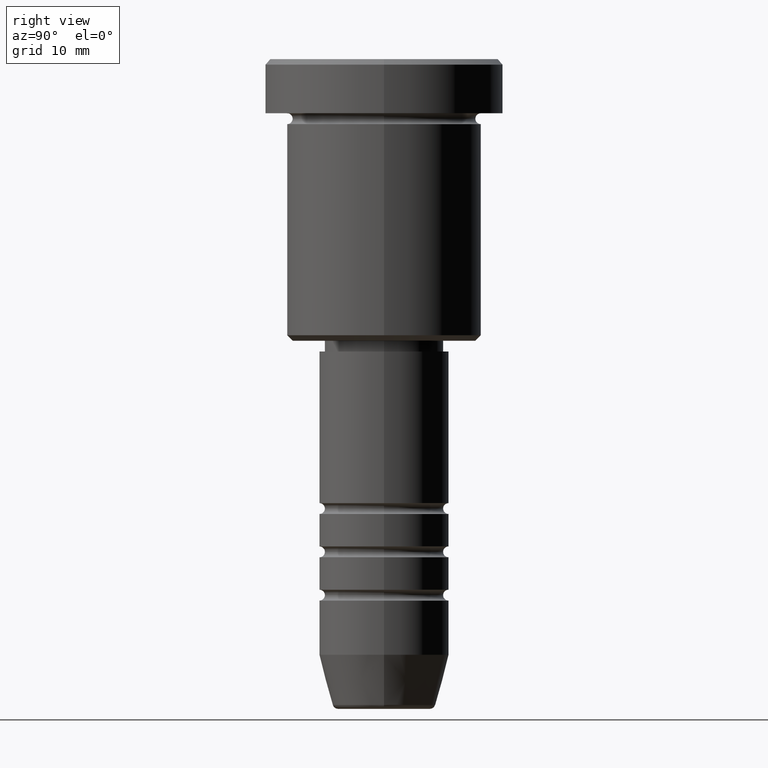
[diagram: clean part render]
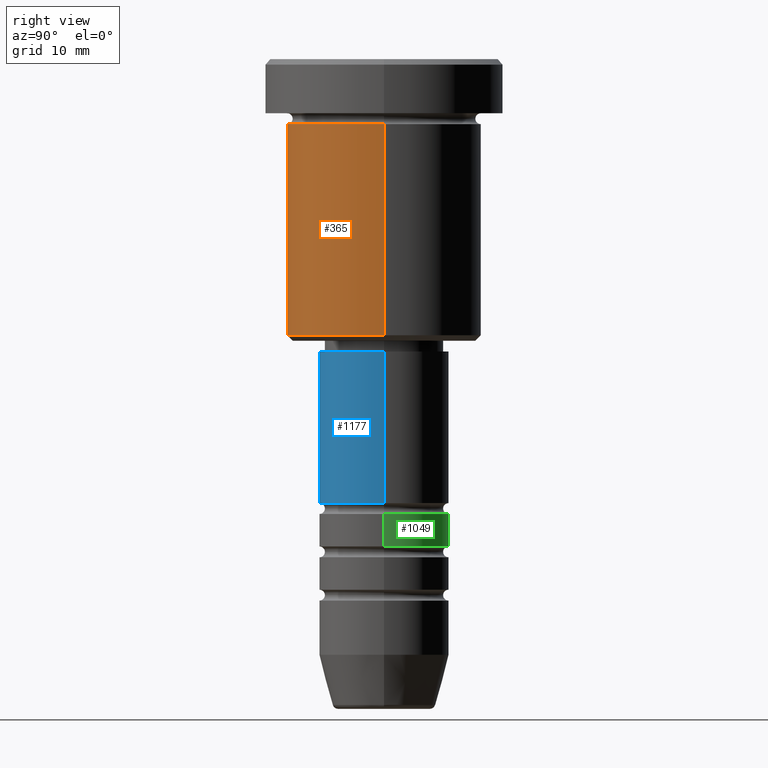
[diagram: same view with three faces highlighted in distinct colors, each labeled with its STEP entity id]
A machine part, right view with three faces highlighted in distinct colors.
Their STEP definitions:

[orange] entity #365 — the highlighted cylindrical surface (partial cylindrical patch) has radius 9 mm, axis along (-0, -0, 1).
#2 = DIRECTION ( 'NONE',  ( -0.000000000000000000, -0.000000000000000000, 1.000000000000000000 ) ) ;
#39 = ORIENTED_EDGE ( 'NONE', *, *, #538, .T. ) ;
#87 = CARTESIAN_POINT ( 'NONE',  ( 9.000000000000000000, 0.000000000000000000, -6.000000000000000000 ) ) ;
#116 = DIRECTION ( 'NONE',  ( -0.000000000000000000, -0.000000000000000000, 1.000000000000000000 ) ) ;
#234 = VERTEX_POINT ( 'NONE', #716 ) ;
#258 = EDGE_CURVE ( 'NONE', #711, #234, #911, .T. ) ;
#291 = CARTESIAN_POINT ( 'NONE',  ( 0.000000000000000000, 0.000000000000000000, -25.50000000000000711 ) ) ;
#365 = ADVANCED_FACE ( 'NONE', ( #1036 ), #937, .T. ) ;
#406 = EDGE_CURVE ( 'NONE', #585, #998, #577, .T. ) ;
#441 = CARTESIAN_POINT ( 'NONE',  ( -9.000000000000000000, 1.102182119232617714E-15, 0.000000000000000000 ) ) ;
#443 = CIRCLE ( 'NONE', #1137, 9.000000000000000000 ) ;
#455 = ORIENTED_EDGE ( 'NONE', *, *, #946, .F. ) ;
#465 = DIRECTION ( 'NONE',  ( -0.000000000000000000, -0.000000000000000000, 1.000000000000000000 ) ) ;
#466 = CIRCLE ( 'NONE', #615, 9.000000000000000000 ) ;
#473 = CARTESIAN_POINT ( 'NONE',  ( 0.000000000000000000, 0.000000000000000000, 0.000000000000000000 ) ) ;
#478 = CARTESIAN_POINT ( 'NONE',  ( -9.000000000000000000, 1.102182119232617714E-15, -25.50000000000000711 ) ) ;
#538 = EDGE_CURVE ( 'NONE', #711, #585, #466, .T. ) ;
#562 = DIRECTION ( 'NONE',  ( 1.000000000000000000, 0.000000000000000000, 0.000000000000000000 ) ) ;
#577 = LINE ( 'NONE', #1027, #710 ) ;
#585 = VERTEX_POINT ( 'NONE', #724 ) ;
#615 = AXIS2_PLACEMENT_3D ( 'NONE', #291, #465, #817 ) ;
#624 = ORIENTED_EDGE ( 'NONE', *, *, #406, .T. ) ;
#634 = AXIS2_PLACEMENT_3D ( 'NONE', #473, #116, #562 ) ;
#667 = DIRECTION ( 'NONE',  ( -0.000000000000000000, -0.000000000000000000, 1.000000000000000000 ) ) ;
#672 = EDGE_LOOP ( 'NONE', ( #775, #39, #624, #455 ) ) ;
#710 = VECTOR ( 'NONE', #667, 1000.000000000000000 ) ;
#711 = VERTEX_POINT ( 'NONE', #478 ) ;
#716 = CARTESIAN_POINT ( 'NONE',  ( -9.000000000000000000, 1.102182119232617714E-15, -6.000000000000000000 ) ) ;
#724 = CARTESIAN_POINT ( 'NONE',  ( 9.000000000000000000, 0.000000000000000000, -25.50000000000000711 ) ) ;
#775 = ORIENTED_EDGE ( 'NONE', *, *, #258, .F. ) ;
#817 = DIRECTION ( 'NONE',  ( -1.000000000000000000, 0.000000000000000000, 0.000000000000000000 ) ) ;
#911 = LINE ( 'NONE', #441, #1138 ) ;
#937 = CYLINDRICAL_SURFACE ( 'NONE', #634, 9.000000000000000000 ) ;
#946 = EDGE_CURVE ( 'NONE', #234, #998, #443, .T. ) ;
#971 = DIRECTION ( 'NONE',  ( -0.000000000000000000, -0.000000000000000000, 1.000000000000000000 ) ) ;
#998 = VERTEX_POINT ( 'NONE', #87 ) ;
#1027 = CARTESIAN_POINT ( 'NONE',  ( 9.000000000000000000, 0.000000000000000000, 0.000000000000000000 ) ) ;
#1036 = FACE_OUTER_BOUND ( 'NONE', #672, .T. ) ;
#1068 = CARTESIAN_POINT ( 'NONE',  ( 0.000000000000000000, 0.000000000000000000, -6.000000000000000000 ) ) ;
#1137 = AXIS2_PLACEMENT_3D ( 'NONE', #1068, #971, #1166 ) ;
#1138 = VECTOR ( 'NONE', #2, 1000.000000000000000 ) ;
#1166 = DIRECTION ( 'NONE',  ( 1.000000000000000000, 0.000000000000000000, 0.000000000000000000 ) ) ;

[blue] entity #1177 — the highlighted cylindrical surface (partial cylindrical patch) has radius 6 mm, axis along (-0, -0, 1).
#30 = FACE_OUTER_BOUND ( 'NONE', #771, .T. ) ;
#45 = CARTESIAN_POINT ( 'NONE',  ( -6.000000000000000000, 7.347880794884119736E-16, -27.00000000000001776 ) ) ;
#63 = CARTESIAN_POINT ( 'NONE',  ( 6.000000000000000000, 0.000000000000000000, -40.99999999999999289 ) ) ;
#98 = DIRECTION ( 'NONE',  ( -0.000000000000000000, -0.000000000000000000, 1.000000000000000000 ) ) ;
#119 = EDGE_CURVE ( 'NONE', #200, #905, #535, .T. ) ;
#144 = DIRECTION ( 'NONE',  ( -0.000000000000000000, -0.000000000000000000, 1.000000000000000000 ) ) ;
#153 = EDGE_CURVE ( 'NONE', #476, #945, #1120, .T. ) ;
#160 = EDGE_CURVE ( 'NONE', #905, #945, #286, .T. ) ;
#192 = ORIENTED_EDGE ( 'NONE', *, *, #153, .F. ) ;
#200 = VERTEX_POINT ( 'NONE', #896 ) ;
#225 = VECTOR ( 'NONE', #98, 1000.000000000000000 ) ;
#286 = LINE ( 'NONE', #532, #377 ) ;
#342 = CARTESIAN_POINT ( 'NONE',  ( 6.000000000000000000, 0.000000000000000000, -27.00000000000001776 ) ) ;
#356 = DIRECTION ( 'NONE',  ( -0.000000000000000000, -0.000000000000000000, 1.000000000000000000 ) ) ;
#377 = VECTOR ( 'NONE', #628, 1000.000000000000000 ) ;
#402 = DIRECTION ( 'NONE',  ( 1.000000000000000000, 0.000000000000000000, 0.000000000000000000 ) ) ;
#416 = CARTESIAN_POINT ( 'NONE',  ( 0.000000000000000000, 0.000000000000000000, -40.99999999999999289 ) ) ;
#474 = CYLINDRICAL_SURFACE ( 'NONE', #684, 6.000000000000000000 ) ;
#476 = VERTEX_POINT ( 'NONE', #45 ) ;
#480 = AXIS2_PLACEMENT_3D ( 'NONE', #708, #356, #1101 ) ;
#532 = CARTESIAN_POINT ( 'NONE',  ( 6.000000000000000000, 0.000000000000000000, 0.000000000000000000 ) ) ;
#535 = CIRCLE ( 'NONE', #728, 6.000000000000000000 ) ;
#551 = LINE ( 'NONE', #914, #225 ) ;
#592 = EDGE_CURVE ( 'NONE', #200, #476, #551, .T. ) ;
#628 = DIRECTION ( 'NONE',  ( -0.000000000000000000, -0.000000000000000000, 1.000000000000000000 ) ) ;
#684 = AXIS2_PLACEMENT_3D ( 'NONE', #934, #1127, #402 ) ;
#708 = CARTESIAN_POINT ( 'NONE',  ( 0.000000000000000000, 0.000000000000000000, -27.00000000000001776 ) ) ;
#728 = AXIS2_PLACEMENT_3D ( 'NONE', #416, #144, #773 ) ;
#742 = ORIENTED_EDGE ( 'NONE', *, *, #119, .T. ) ;
#771 = EDGE_LOOP ( 'NONE', ( #1044, #742, #822, #192 ) ) ;
#773 = DIRECTION ( 'NONE',  ( 1.000000000000000000, 0.000000000000000000, 0.000000000000000000 ) ) ;
#822 = ORIENTED_EDGE ( 'NONE', *, *, #160, .T. ) ;
#896 = CARTESIAN_POINT ( 'NONE',  ( -6.000000000000000000, 7.347880794884119736E-16, -40.99999999999999289 ) ) ;
#905 = VERTEX_POINT ( 'NONE', #63 ) ;
#914 = CARTESIAN_POINT ( 'NONE',  ( -6.000000000000000000, 7.347880794884119736E-16, 0.000000000000000000 ) ) ;
#934 = CARTESIAN_POINT ( 'NONE',  ( 0.000000000000000000, 0.000000000000000000, 0.000000000000000000 ) ) ;
#945 = VERTEX_POINT ( 'NONE', #342 ) ;
#1044 = ORIENTED_EDGE ( 'NONE', *, *, #592, .F. ) ;
#1101 = DIRECTION ( 'NONE',  ( 1.000000000000000000, 0.000000000000000000, 0.000000000000000000 ) ) ;
#1120 = CIRCLE ( 'NONE', #480, 6.000000000000000000 ) ;
#1127 = DIRECTION ( 'NONE',  ( -0.000000000000000000, -0.000000000000000000, 1.000000000000000000 ) ) ;
#1177 = ADVANCED_FACE ( 'NONE', ( #30 ), #474, .T. ) ;

[green] entity #1049 — the highlighted cylindrical surface (partial cylindrical patch) has radius 6 mm, axis along (-0, -0, 1).
#23 = DIRECTION ( 'NONE',  ( 1.000000000000000000, 0.000000000000000000, 0.000000000000000000 ) ) ;
#52 = DIRECTION ( 'NONE',  ( -0.000000000000000000, -0.000000000000000000, 1.000000000000000000 ) ) ;
#64 = VERTEX_POINT ( 'NONE', #768 ) ;
#79 = CARTESIAN_POINT ( 'NONE',  ( 0.000000000000000000, 0.000000000000000000, -44.99999999999999289 ) ) ;
#92 = DIRECTION ( 'NONE',  ( 1.000000000000000000, 0.000000000000000000, 0.000000000000000000 ) ) ;
#126 = CARTESIAN_POINT ( 'NONE',  ( 5.999999999999999112, 0.000000000000000000, -41.99999999999999289 ) ) ;
#190 = CARTESIAN_POINT ( 'NONE',  ( -5.999999999999999112, 7.347880794884118750E-16, -41.99999999999999289 ) ) ;
#191 = EDGE_LOOP ( 'NONE', ( #683, #199, #901, #739 ) ) ;
#194 = VERTEX_POINT ( 'NONE', #190 ) ;
#199 = ORIENTED_EDGE ( 'NONE', *, *, #663, .T. ) ;
#204 = CIRCLE ( 'NONE', #1023, 6.000000000000001776 ) ;
#220 = EDGE_CURVE ( 'NONE', #982, #725, #618, .T. ) ;
#297 = EDGE_CURVE ( 'NONE', #982, #64, #204, .T. ) ;
#376 = CARTESIAN_POINT ( 'NONE',  ( 0.000000000000000000, 0.000000000000000000, 0.000000000000000000 ) ) ;
#394 = LINE ( 'NONE', #1134, #885 ) ;
#407 = DIRECTION ( 'NONE',  ( 1.000000000000000000, 0.000000000000000000, 0.000000000000000000 ) ) ;
#461 = AXIS2_PLACEMENT_3D ( 'NONE', #1123, #52, #407 ) ;
#531 = CARTESIAN_POINT ( 'NONE',  ( 6.000000000000001776, 0.000000000000000000, -44.99999999999999289 ) ) ;
#536 = FACE_OUTER_BOUND ( 'NONE', #191, .T. ) ;
#606 = AXIS2_PLACEMENT_3D ( 'NONE', #376, #804, #92 ) ;
#618 = LINE ( 'NONE', #1006, #961 ) ;
#663 = EDGE_CURVE ( 'NONE', #64, #194, #394, .T. ) ;
#683 = ORIENTED_EDGE ( 'NONE', *, *, #297, .T. ) ;
#725 = VERTEX_POINT ( 'NONE', #126 ) ;
#739 = ORIENTED_EDGE ( 'NONE', *, *, #220, .F. ) ;
#762 = EDGE_CURVE ( 'NONE', #725, #194, #1157, .T. ) ;
#768 = CARTESIAN_POINT ( 'NONE',  ( -6.000000000000001776, 7.347880794884121708E-16, -44.99999999999999289 ) ) ;
#804 = DIRECTION ( 'NONE',  ( -0.000000000000000000, -0.000000000000000000, 1.000000000000000000 ) ) ;
#885 = VECTOR ( 'NONE', #1128, 1000.000000000000000 ) ;
#901 = ORIENTED_EDGE ( 'NONE', *, *, #762, .F. ) ;
#907 = CYLINDRICAL_SURFACE ( 'NONE', #606, 6.000000000000000000 ) ;
#917 = DIRECTION ( 'NONE',  ( -0.000000000000000000, -0.000000000000000000, 1.000000000000000000 ) ) ;
#961 = VECTOR ( 'NONE', #917, 1000.000000000000000 ) ;
#982 = VERTEX_POINT ( 'NONE', #531 ) ;
#1006 = CARTESIAN_POINT ( 'NONE',  ( 6.000000000000000000, 0.000000000000000000, 0.000000000000000000 ) ) ;
#1023 = AXIS2_PLACEMENT_3D ( 'NONE', #79, #1125, #23 ) ;
#1049 = ADVANCED_FACE ( 'NONE', ( #536 ), #907, .T. ) ;
#1123 = CARTESIAN_POINT ( 'NONE',  ( 0.000000000000000000, 0.000000000000000000, -41.99999999999999289 ) ) ;
#1125 = DIRECTION ( 'NONE',  ( -0.000000000000000000, -0.000000000000000000, 1.000000000000000000 ) ) ;
#1128 = DIRECTION ( 'NONE',  ( -0.000000000000000000, -0.000000000000000000, 1.000000000000000000 ) ) ;
#1134 = CARTESIAN_POINT ( 'NONE',  ( -6.000000000000000000, 7.347880794884119736E-16, 0.000000000000000000 ) ) ;
#1157 = CIRCLE ( 'NONE', #461, 5.999999999999999112 ) ;